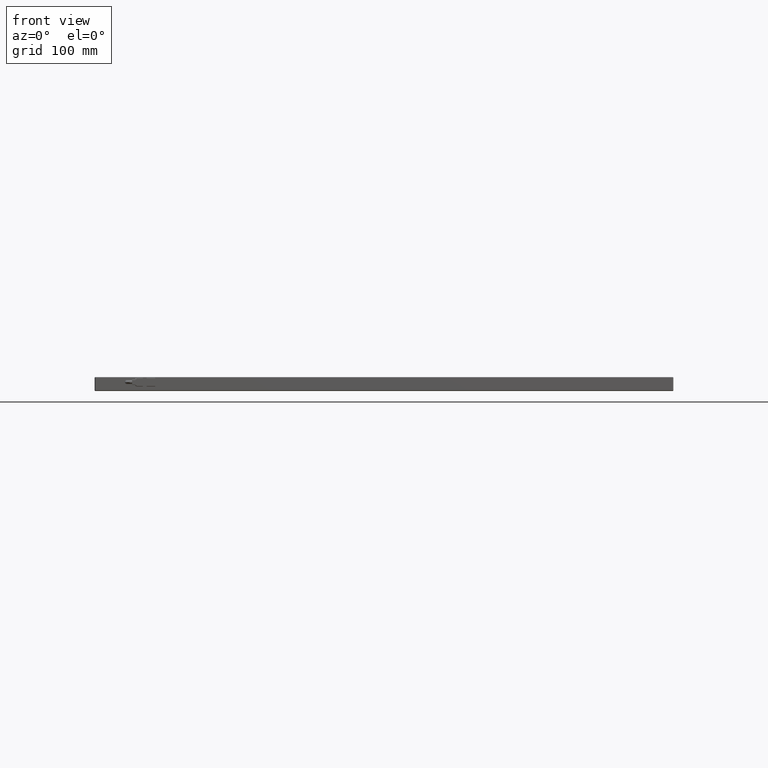
[diagram: clean part render]
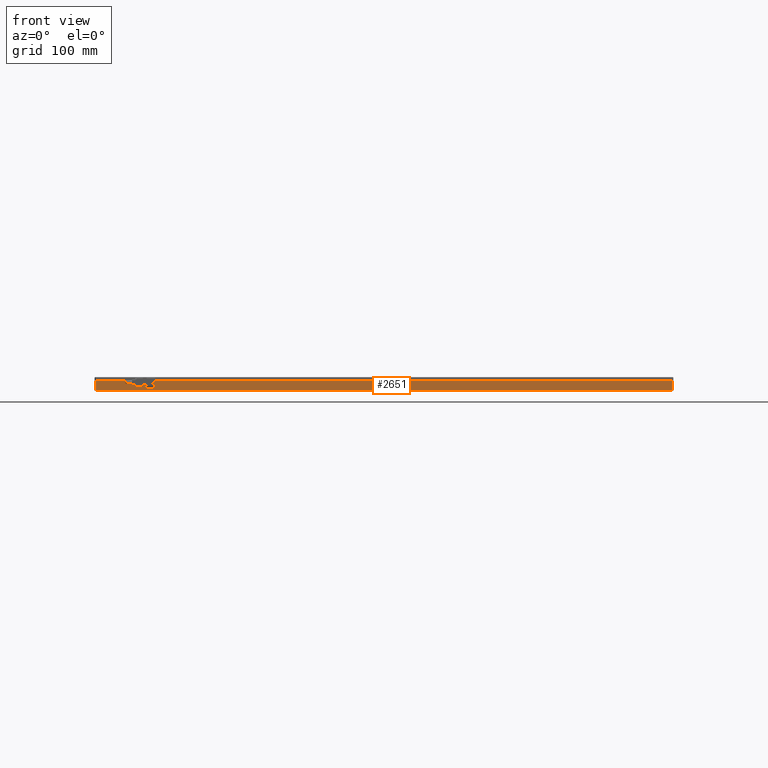
[diagram: same view with one face highlighted and labeled with its STEP entity id]
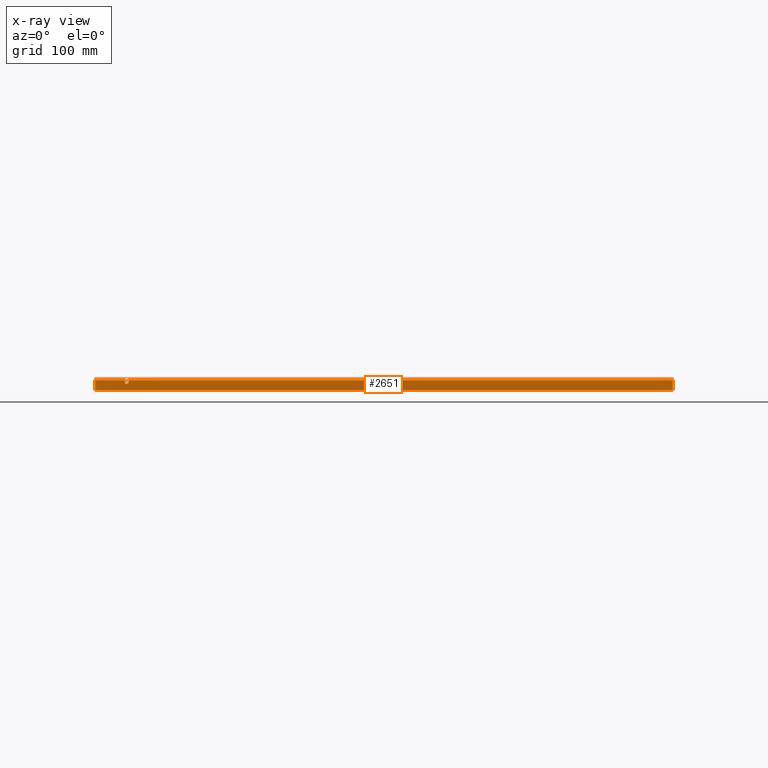
[diagram: x-ray of the same camera — body ghosted, the highlighted face saturated]
A machine part, front view. The second image highlights one B-rep face of the part: STEP entity #2651.
The next image is the same camera in x-ray: the body ghosted, the highlighted face saturated — about 0% of this face is hidden behind the body in this view.
In plain terms, the highlighted planar face has unit normal (0, 1, 0).
Its self-contained STEP definition (entity closure, byte-faithful):
#88 = CARTESIAN_POINT ( 'NONE',  ( -255.0590440487348200, -174.2877225866916100, 10.00000000001909900 ) ) ;
#240 = EDGE_CURVE ( 'NONE', #8536, #17198, #1823, .T. ) ;
#1257 = VECTOR ( 'NONE', #5375, 1000.000000000000000 ) ;
#1823 = LINE ( 'NONE', #40846, #12011 ) ;
#2206 = DIRECTION ( 'NONE',  ( 0.0000000000000000000, -0.0000000000000000000, 1.000000000000000000 ) ) ;
#2430 = CARTESIAN_POINT ( 'NONE',  ( -227.8090440487347100, -174.2877225866916100, 8.250000000019097600 ) ) ;
#2651 = ADVANCED_FACE ( 'NONE', ( #29789 ), #7529, .F. ) ;
#3587 = ORIENTED_EDGE ( 'NONE', *, *, #9703, .F. ) ;
#3989 = VERTEX_POINT ( 'NONE', #36644 ) ;
#4392 = DIRECTION ( 'NONE',  ( 0.0000000000000000000, -0.0000000000000000000, 1.000000000000000000 ) ) ;
#4765 = CIRCLE ( 'NONE', #13506, 1.750000000000001600 ) ;
#4906 = ORIENTED_EDGE ( 'NONE', *, *, #240, .F. ) ;
#5375 = DIRECTION ( 'NONE',  ( -1.000000000000000000, 0.0000000000000000000, -0.0000000000000000000 ) ) ;
#5581 = ORIENTED_EDGE ( 'NONE', *, *, #40701, .F. ) ;
#5640 = LINE ( 'NONE', #26262, #19534 ) ;
#5664 = CARTESIAN_POINT ( 'NONE',  ( -256.0590440487347900, -174.2877225866916100, 10.00000000001909900 ) ) ;
#5797 = VECTOR ( 'NONE', #41036, 1000.000000000000000 ) ;
#7029 = AXIS2_PLACEMENT_3D ( 'NONE', #26143, #36015, #39347 ) ;
#7248 = VECTOR ( 'NONE', #38211, 1000.000000000000000 ) ;
#7529 = PLANE ( 'NONE',  #11374 ) ;
#8536 = VERTEX_POINT ( 'NONE', #23060 ) ;
#8983 = VECTOR ( 'NONE', #12687, 1000.000000000000000 ) ;
#9703 = EDGE_CURVE ( 'NONE', #37465, #3989, #35591, .T. ) ;
#10771 = VERTEX_POINT ( 'NONE', #37904 ) ;
#11109 = VERTEX_POINT ( 'NONE', #42220 ) ;
#11374 = AXIS2_PLACEMENT_3D ( 'NONE', #37108, #17288, #4392 ) ;
#11534 = VERTEX_POINT ( 'NONE', #33789 ) ;
#11545 = EDGE_CURVE ( 'NONE', #11534, #40032, #33008, .T. ) ;
#11810 = DIRECTION ( 'NONE',  ( -0.0000000000000000000, 0.0000000000000000000, -1.000000000000000000 ) ) ;
#12003 = ORIENTED_EDGE ( 'NONE', *, *, #37976, .F. ) ;
#12011 = VECTOR ( 'NONE', #11810, 1000.000000000000000 ) ;
#12346 = DIRECTION ( 'NONE',  ( -0.0000000000000000000, -1.000000000000000000, -0.0000000000000000000 ) ) ;
#12631 = DIRECTION ( 'NONE',  ( 0.0000000000000000000, 0.0000000000000000000, -1.000000000000000000 ) ) ;
#12687 = DIRECTION ( 'NONE',  ( -1.000000000000000000, 0.0000000000000000000, -0.0000000000000000000 ) ) ;
#13506 = AXIS2_PLACEMENT_3D ( 'NONE', #22264, #12346, #12631 ) ;
#13518 = EDGE_LOOP ( 'NONE', ( #39937, #5581, #12003, #4906, #35017, #3587, #16580, #34062, #30412 ) ) ;
#16580 = ORIENTED_EDGE ( 'NONE', *, *, #37328, .F. ) ;
#17198 = VERTEX_POINT ( 'NONE', #2430 ) ;
#17288 = DIRECTION ( 'NONE',  ( 0.0000000000000000000, 1.000000000000000000, 0.0000000000000000000 ) ) ;
#18917 = CIRCLE ( 'NONE', #7029, 1.750000000000001600 ) ;
#19534 = VECTOR ( 'NONE', #36116, 1000.000000000000000 ) ;
#19705 = VECTOR ( 'NONE', #2206, 1000.000000000000000 ) ;
#20831 = LINE ( 'NONE', #29345, #8983 ) ;
#21532 = CARTESIAN_POINT ( 'NONE',  ( -224.3090440487347100, -174.2877225866916100, 10.00000000001909900 ) ) ;
#22123 = CARTESIAN_POINT ( 'NONE',  ( -255.0590440487348200, -174.2877225866916100, 0.5000000000189297500 ) ) ;
#22264 = CARTESIAN_POINT ( 'NONE',  ( -226.0590440487347100, -174.2877225866916100, 8.250000000019097600 ) ) ;
#23060 = CARTESIAN_POINT ( 'NONE',  ( -227.8090440487347100, -174.2877225866916100, 10.00000000001909900 ) ) ;
#24216 = CARTESIAN_POINT ( 'NONE',  ( -224.3090440487347100, -174.2877225866916100, 10.00000000001909900 ) ) ;
#26143 = CARTESIAN_POINT ( 'NONE',  ( -226.0590440487347100, -174.2877225866916100, 8.250000000019097600 ) ) ;
#26262 = CARTESIAN_POINT ( 'NONE',  ( 282.9409559512654400, -174.2877225866916100, 10.00000000001909900 ) ) ;
#29345 = CARTESIAN_POINT ( 'NONE',  ( -256.0590440487347900, -174.2877225866916100, 10.00000000001909900 ) ) ;
#29789 = FACE_OUTER_BOUND ( 'NONE', #13518, .T. ) ;
#30412 = ORIENTED_EDGE ( 'NONE', *, *, #39170, .T. ) ;
#31311 = CARTESIAN_POINT ( 'NONE',  ( -256.0590440487346800, -174.2877225866916100, 0.5000000000189331900 ) ) ;
#33008 = LINE ( 'NONE', #24216, #5797 ) ;
#33415 = LINE ( 'NONE', #31311, #7248 ) ;
#33789 = CARTESIAN_POINT ( 'NONE',  ( -224.3090440487347100, -174.2877225866916100, 8.250000000019097600 ) ) ;
#34062 = ORIENTED_EDGE ( 'NONE', *, *, #37590, .F. ) ;
#34657 = EDGE_CURVE ( 'NONE', #8536, #3989, #35045, .T. ) ;
#35017 = ORIENTED_EDGE ( 'NONE', *, *, #34657, .T. ) ;
#35045 = LINE ( 'NONE', #5664, #1257 ) ;
#35591 = LINE ( 'NONE', #88, #19705 ) ;
#36015 = DIRECTION ( 'NONE',  ( -0.0000000000000000000, -1.000000000000000000, -0.0000000000000000000 ) ) ;
#36116 = DIRECTION ( 'NONE',  ( -0.0000000000000000000, 0.0000000000000000000, -1.000000000000000000 ) ) ;
#36644 = CARTESIAN_POINT ( 'NONE',  ( -255.0590440487348200, -174.2877225866916100, 10.00000000001909900 ) ) ;
#37108 = CARTESIAN_POINT ( 'NONE',  ( -256.0590440487346800, -174.2877225866916100, 10.00000000001909900 ) ) ;
#37328 = EDGE_CURVE ( 'NONE', #42004, #37465, #33415, .T. ) ;
#37465 = VERTEX_POINT ( 'NONE', #22123 ) ;
#37590 = EDGE_CURVE ( 'NONE', #11109, #42004, #5640, .T. ) ;
#37904 = CARTESIAN_POINT ( 'NONE',  ( -226.0590440487347100, -174.2877225866916100, 6.500000000019096700 ) ) ;
#37976 = EDGE_CURVE ( 'NONE', #17198, #10771, #18917, .T. ) ;
#38211 = DIRECTION ( 'NONE',  ( -1.000000000000000000, -0.0000000000000000000, -0.0000000000000000000 ) ) ;
#38958 = CARTESIAN_POINT ( 'NONE',  ( 282.9409559512654400, -174.2877225866916100, 0.5000000000189265300 ) ) ;
#39170 = EDGE_CURVE ( 'NONE', #11109, #40032, #20831, .T. ) ;
#39347 = DIRECTION ( 'NONE',  ( 0.0000000000000000000, 0.0000000000000000000, -1.000000000000000000 ) ) ;
#39937 = ORIENTED_EDGE ( 'NONE', *, *, #11545, .F. ) ;
#40032 = VERTEX_POINT ( 'NONE', #21532 ) ;
#40701 = EDGE_CURVE ( 'NONE', #10771, #11534, #4765, .T. ) ;
#40846 = CARTESIAN_POINT ( 'NONE',  ( -227.8090440487347100, -174.2877225866916100, 10.00000000001909900 ) ) ;
#41036 = DIRECTION ( 'NONE',  ( 0.0000000000000000000, -0.0000000000000000000, 1.000000000000000000 ) ) ;
#42004 = VERTEX_POINT ( 'NONE', #38958 ) ;
#42220 = CARTESIAN_POINT ( 'NONE',  ( 282.9409559512654400, -174.2877225866916100, 10.00000000001909900 ) ) ;